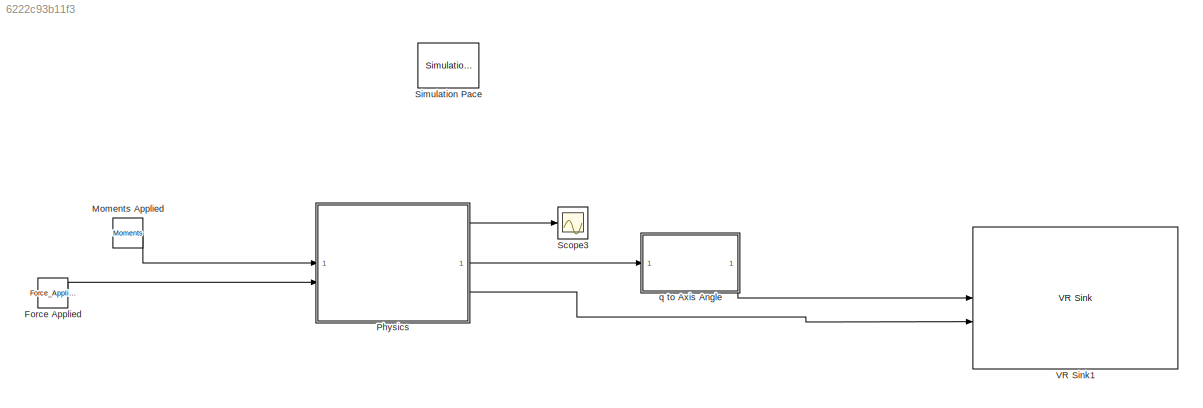
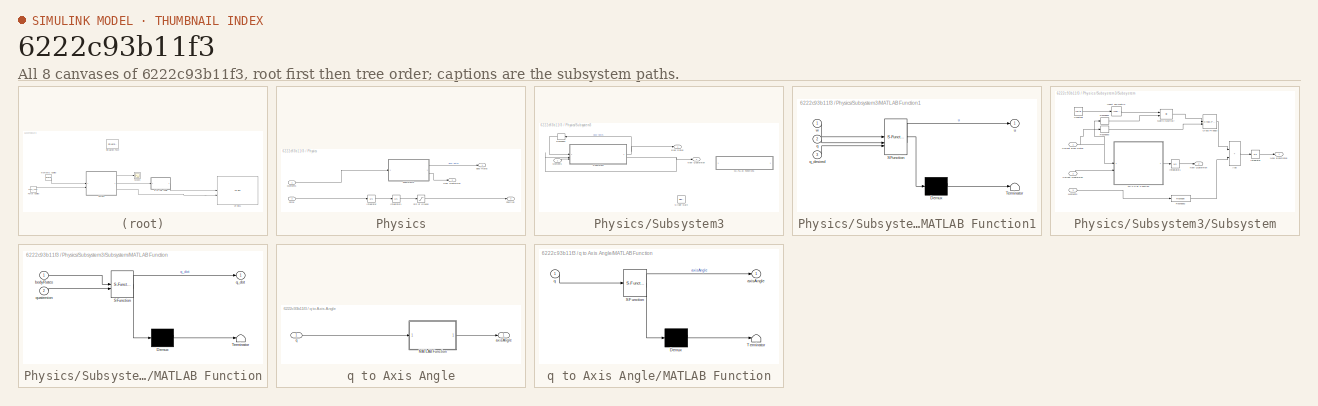
[diagram: thumbnail index - all 8 canvases of the model, root first then tree order]
MODEL slx_6222c93b11f3
KIND model
CONFIG AbsTol = auto
CONFIG EnableMultiTasking = off
CONFIG FixedStep = auto
CONFIG MaxStep = auto
CONFIG MinStep = auto
CONFIG RelTol = 1e-3
CONFIG SampleTimeConstraint = Unconstrained
CONFIG SolverName = VariableStepAuto
CONFIG StartTime = 0.0
CONFIG StopTime = 10.0
BLOCK [Constant] Force Applied
  Value = Force_Applied
BLOCK [Constant] Moments Applied
  Value = Moments
BLOCK [SubSystem] Physics
BLOCK [Outport] Physics/Body Rates
BLOCK [Inport] Physics/Force
  Port = 2
BLOCK [Integrator] Physics/Integrator
  InitialCondition = [0,m*g,0]
  LimitOutput = on
BLOCK [Integrator] Physics/Integrator1
  InitialCondition = Initial_Pos
BLOCK [Inport] Physics/Moments
BLOCK [Outport] Physics/New Quaternion
  Port = 2
BLOCK [Outport] Physics/Position
  Port = 3
BLOCK [Saturate] Physics/Sim of Ground
  LowerLimit = [-200,0,-200]
  UpperLimit = [200,200,200]
BLOCK [SubSystem] Physics/Subsystem3
BLOCK [Outport] Physics/Subsystem3/Body Rates
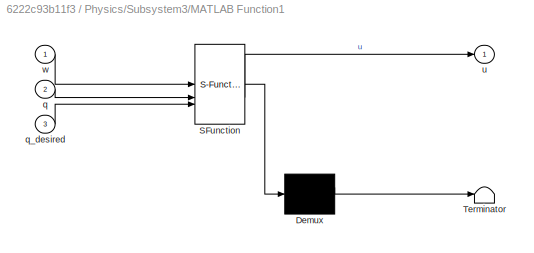
BLOCK [SubSystem] Physics/Subsystem3/MATLAB Function1
  Commented = on
  ErrorFcn = Stateflow.Translate.translate
  PermitHierarchicalResolution = ExplicitOnly
  SFBlockType = MATLAB Function
  TreatAsAtomicUnit = on
BLOCK [Demux] Physics/Subsystem3/MATLAB Function1/ Demux 
  Outputs = 1
BLOCK [S-Function] Physics/Subsystem3/MATLAB Function1/ SFunction 
  EnableBusSupport = off
  FunctionName = sf_sfun
  PortCounts = [3 2]
  SFcnIsStateOwnerBlock = off
  SFunctionDeploymentMode = off
  Tag = Stateflow S-Function 7
BLOCK [Terminator] Physics/Subsystem3/MATLAB Function1/ Terminator 
BLOCK [Inport] Physics/Subsystem3/MATLAB Function1/q
  Port = 2
BLOCK [Inport] Physics/Subsystem3/MATLAB Function1/q_desired
  Port = 3
BLOCK [Outport] Physics/Subsystem3/MATLAB Function1/u
BLOCK [Inport] Physics/Subsystem3/MATLAB Function1/w
BLOCK [Inport] Physics/Subsystem3/Moments
BLOCK [Outport] Physics/Subsystem3/New Quaternion
  Port = 2
BLOCK [Reshape] Physics/Subsystem3/Reshape1
  OutputDimensionality = Customize
  OutputDimensions = [1,3]
BLOCK [Reference] Physics/Subsystem3/Slider Gain  REF=simulink/Math
Operations/Slider
Gain
  Commented = on
  SourceBlock = simulink/Math\nOperations/Slider\nGain
  SourceType = Slider Gain
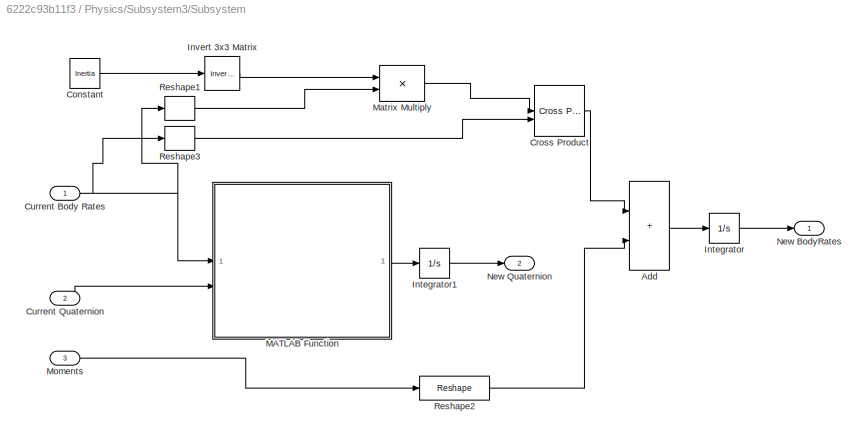
BLOCK [SubSystem] Physics/Subsystem3/Subsystem
BLOCK [Sum] Physics/Subsystem3/Subsystem/Add
  IconShape = rectangular
BLOCK [Constant] Physics/Subsystem3/Subsystem/Constant
  Value = Inertia
BLOCK [Reference] Physics/Subsystem3/Subsystem/Cross Product  REF=matrix_library/Cross Product
  SourceBlock = matrix_library/Cross Product
  SourceType = CrossProduct
BLOCK [Inport] Physics/Subsystem3/Subsystem/Current Body Rates
BLOCK [Inport] Physics/Subsystem3/Subsystem/Current Quaternion
  Port = 2
BLOCK [Integrator] Physics/Subsystem3/Subsystem/Integrator
  InitialCondition = pqr_0
BLOCK [Integrator] Physics/Subsystem3/Subsystem/Integrator1
  InitialCondition = q_0
BLOCK [Reference] Physics/Subsystem3/Subsystem/Invert 3x3 Matrix  REF=aerolibutil/Invert 
3x3 Matrix
  SourceBlock = aerolibutil/Invert \n3x3 Matrix
  SourceType = Invert 3x3 Matrix
BLOCK [SubSystem] Physics/Subsystem3/Subsystem/MATLAB Function
  ErrorFcn = Stateflow.Translate.translate
  PermitHierarchicalResolution = ExplicitOnly
  SFBlockType = MATLAB Function
  TreatAsAtomicUnit = on
BLOCK [Demux] Physics/Subsystem3/Subsystem/MATLAB Function/ Demux 
  Outputs = 1
BLOCK [S-Function] Physics/Subsystem3/Subsystem/MATLAB Function/ SFunction 
  EnableBusSupport = on
  FunctionName = sf_sfun
  PortCounts = [2 2]
  SFcnIsStateOwnerBlock = off
  SFunctionDeploymentMode = off
  Tag = Stateflow S-Function 8
BLOCK [Terminator] Physics/Subsystem3/Subsystem/MATLAB Function/ Terminator 
BLOCK [Inport] Physics/Subsystem3/Subsystem/MATLAB Function/bodyRates
BLOCK [Outport] Physics/Subsystem3/Subsystem/MATLAB Function/q_dot
BLOCK [Inport] Physics/Subsystem3/Subsystem/MATLAB Function/quaternion
  Port = 2
BLOCK [Product] Physics/Subsystem3/Subsystem/Matrix Multiply
  Multiplication = Matrix(*)
BLOCK [Inport] Physics/Subsystem3/Subsystem/Moments
  Port = 3
BLOCK [Outport] Physics/Subsystem3/Subsystem/New BodyRates
BLOCK [Outport] Physics/Subsystem3/Subsystem/New Quaternion
  Port = 2
BLOCK [Reshape] Physics/Subsystem3/Subsystem/Reshape1
  OutputDimensionality = Customize
  OutputDimensions = [3,1]
BLOCK [Reshape] Physics/Subsystem3/Subsystem/Reshape2
  OutputDimensionality = Customize
  OutputDimensions = [3,1]
BLOCK [Reshape] Physics/Subsystem3/Subsystem/Reshape3
  OutputDimensionality = Customize
  OutputDimensions = [3,1]
BLOCK [Scope] Scope3
  Floating = off
  NumInputPorts = 1
  ScopeSpecificationString = Simulink.scopes.TimeScopeBlockCfg('CurrentConfiguration', extmgr.ConfigurationSet(extmgr.Configuration('Core','General UI',true),extmgr.Configuration('Core','Source UI',true),extmgr.Configuration('Sources','WiredSimulink',true),extmgr.Configuration('Visuals','Time Domain',true,'SerializedDisplays',{struct('MinYLimReal','-0.125','MaxYLimReal','1.125','YLabelReal','','MinYLimMag','0.00000','MaxYLimM...<+1335ch>
BLOCK [Reference] Simulation Pace  REF=aerolibanimutils/Simulation Pace
  AttributesFormatString = %<SleepMode>\n%<SimulationPace> sec/sec
  SourceBlock = aerolibanimutils/Simulation Pace
  SourceType = Simulation Pace
BLOCK [Reference] VR Sink1  REF=vrlib/VR Sink
  InstantiateOnLoad = on
  SourceBlock = vrlib/VR Sink
  SourceType = Virtual Reality Sink
BLOCK [SubSystem] q to Axis Angle
BLOCK [SubSystem] q to Axis Angle/MATLAB Function
  ErrorFcn = Stateflow.Translate.translate
  PermitHierarchicalResolution = ExplicitOnly
  SFBlockType = MATLAB Function
  TreatAsAtomicUnit = on
BLOCK [Demux] q to Axis Angle/MATLAB Function/ Demux 
  Outputs = 1
BLOCK [S-Function] q to Axis Angle/MATLAB Function/ SFunction 
  EnableBusSupport = on
  FunctionName = sf_sfun
  PortCounts = [1 2]
  SFcnIsStateOwnerBlock = off
  SFunctionDeploymentMode = off
  Tag = Stateflow S-Function 5
BLOCK [Terminator] q to Axis Angle/MATLAB Function/ Terminator 
BLOCK [Outport] q to Axis Angle/MATLAB Function/axisAngle
BLOCK [Inport] q to Axis Angle/MATLAB Function/q
BLOCK [Outport] q to Axis Angle/axisAngle
BLOCK [Inport] q to Axis Angle/q
LINE Force Applied:1 -> Physics:2
LINE Moments Applied:1 -> Physics:1
LINE Physics/Force:1 -> Physics/Integrator:1
LINE Physics/Integrator1:1 -> Physics/Sim of Ground:1
LINE Physics/Integrator:1 -> Physics/Integrator1:1
LINE Physics/Moments:1 -> Physics/Subsystem3:1
LINE Physics/Sim of Ground:1 -> Physics/Position:1
LINE Physics/Subsystem3/Moments:1 -> Physics/Subsystem3/Subsystem:3
LINE Physics/Subsystem3/Reshape1:1 -> Physics/Subsystem3/Subsystem:1
LINE Physics/Subsystem3/Subsystem/Add:1 -> Physics/Subsystem3/Subsystem/Integrator:1
LINE Physics/Subsystem3/Subsystem/Constant:1 -> Physics/Subsystem3/Subsystem/Invert 3x3 Matrix:1
LINE Physics/Subsystem3/Subsystem/Cross Product:1 -> Physics/Subsystem3/Subsystem/Add:1
NET Physics/Subsystem3/Subsystem/Current Body Rates:1 -> Physics/Subsystem3/Subsystem/MATLAB Function:1, Physics/Subsystem3/Subsystem/Reshape1:1, Physics/Subsystem3/Subsystem/Reshape3:1
LINE Physics/Subsystem3/Subsystem/Current Quaternion:1 -> Physics/Subsystem3/Subsystem/MATLAB Function:2
LINE Physics/Subsystem3/Subsystem/Integrator1:1 -> Physics/Subsystem3/Subsystem/New Quaternion:1
LINE Physics/Subsystem3/Subsystem/Integrator:1 -> Physics/Subsystem3/Subsystem/New BodyRates:1
LINE Physics/Subsystem3/Subsystem/Invert 3x3 Matrix:1 -> Physics/Subsystem3/Subsystem/Matrix Multiply:1
LINE Physics/Subsystem3/Subsystem/MATLAB Function:1 -> Physics/Subsystem3/Subsystem/Integrator1:1
LINE Physics/Subsystem3/Subsystem/Matrix Multiply:1 -> Physics/Subsystem3/Subsystem/Cross Product:1
LINE Physics/Subsystem3/Subsystem/Moments:1 -> Physics/Subsystem3/Subsystem/Reshape2:1
LINE Physics/Subsystem3/Subsystem/Reshape1:1 -> Physics/Subsystem3/Subsystem/Matrix Multiply:2
LINE Physics/Subsystem3/Subsystem/Reshape2:1 -> Physics/Subsystem3/Subsystem/Add:2
LINE Physics/Subsystem3/Subsystem/Reshape3:1 -> Physics/Subsystem3/Subsystem/Cross Product:2
NET Physics/Subsystem3/Subsystem:1 -> Physics/Subsystem3/Body Rates:1, Physics/Subsystem3/Reshape1:1
NET Physics/Subsystem3/Subsystem:2 -> Physics/Subsystem3/New Quaternion:1, Physics/Subsystem3/Subsystem:2
LINE Physics/Subsystem3:1 -> Physics/Body Rates:1
LINE Physics/Subsystem3:2 -> Physics/New Quaternion:1
LINE Physics:1 -> Scope3:1
LINE Physics:2 -> q to Axis Angle:1
LINE Physics:3 -> VR Sink1:2
LINE q to Axis Angle/MATLAB Function:1 -> q to Axis Angle/axisAngle:1
LINE q to Axis Angle/q:1 -> q to Axis Angle/MATLAB Function:1
LINE q to Axis Angle:1 -> VR Sink1:1
note: NET lines group one-source signal fan-out (src -> all destinations, sorted); 1:1 wires keep LINE
CHART Physics/Subsystem3/MATLAB Function1 states=1 transitions=1
  STATE_LABEL 'eML_blk_kernel()'
  STATE_LABEL 'SCRIPT:\n function u = control(w,q,q_desired)\n    \n    q_current = q;\n\n    wx = w(1);\n    wy = w(2);\n    wz = w(3);\n\n    qe = [    q_desired(1),  q_desired(2),  q_desired(3),  q_desired(4);...\n             -q_desired(2),  q_desired(1),  q_desired(4), -q_desired(3);...\n             -q_desired(3), -q_desired(4),  q_desired(1),  q_desired(2);...\n             -q_desired(4),  q_desired(3), -q_desired(2)...<+99ch>'
CHART Physics/Subsystem3/Subsystem/MATLAB Function states=1 transitions=1
  STATE_LABEL 'eML_blk_kernel()'
  STATE_LABEL 'SCRIPT:\nfunction q_dot = getBodyRates(bodyRates,quaternion)\n\n    p = bodyRates(1);\n    q = bodyRates(2); \n    r = bodyRates(3);\n    \n    half_Q_Matrix =   0.5 * [  0, -p, -q, -r\n                               p,  0,  r, -q\n                               q, -r,  0,  p\n                               r,  q, -p,  0];\n                \n    qVec  =  [quaternion(1); quaternion(2); quaternion(3); quaternio...<+57ch>'
CHART q to Axis Angle/MATLAB Function states=1 transitions=1
  STATE_LABEL 'eML_blk_kernel()'
  STATE_LABEL 'SCRIPT:\n\nfunction axisAngle = Quaternion_To_AxisAngle(q)\n    for  i = 1:4\n        if q(i) > 1 \n            q(i) = 1.0;\n            disp(q)\n        end\n    end\n\n    qw = q(1);\n    qx = q(2);\n    qy = q(3);\n    qz = q(4);\n  \n\n    theta = 2*acos(qw);\n\n    if theta == 0 \n        x = 1;\n        y = 0;\n        z = 0;\n    else\n        x = qx/(sin(theta/2));\n        y = qy/(sin(theta/2));\n        z = qz/(...<+135ch>'
CHART  states=0 transitions=0
CHART  states=0 transitions=0
CHART  states=0 transitions=0
